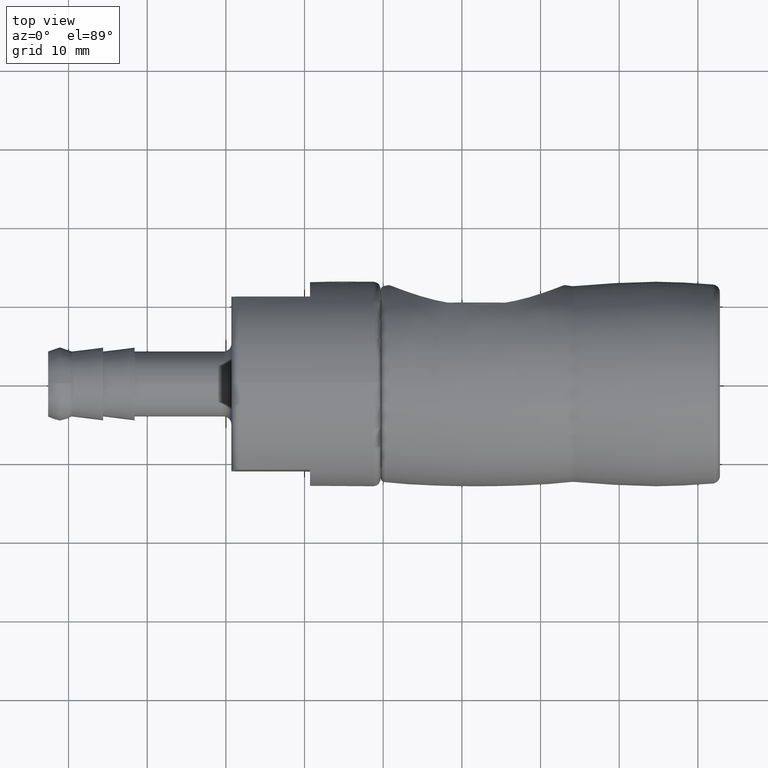
[diagram: clean part render]
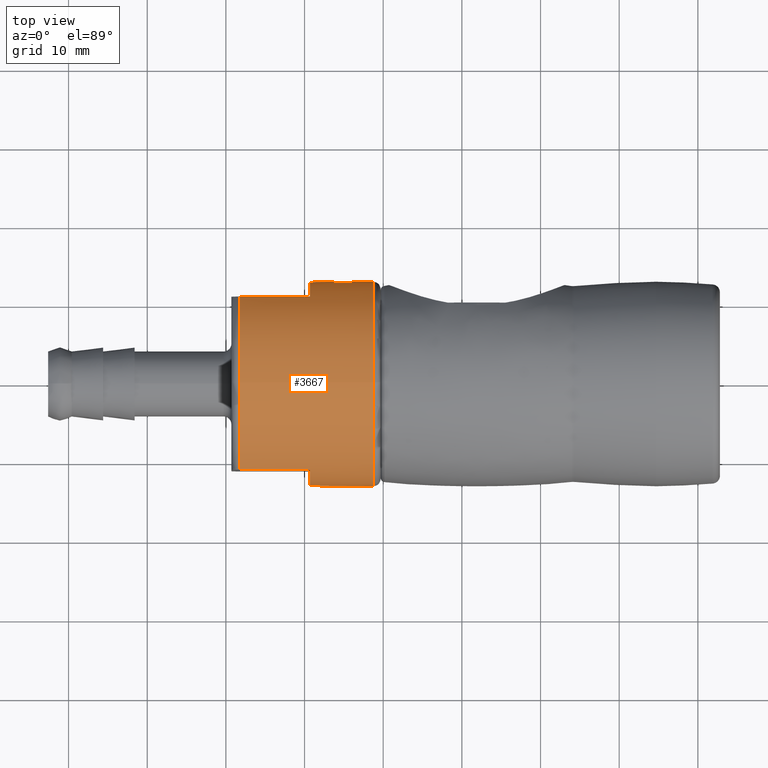
[diagram: same view with one face highlighted and labeled with its STEP entity id]
A machine part, top view. The second image highlights one B-rep face of the part: STEP entity #3667.
In plain terms, the highlighted cylindrical surface (bore or boss wall) has radius 13 mm, axis along (-1, -0, -0).
Its self-contained STEP definition (entity closure, byte-faithful):
#188=FACE_BOUND('',#1161,.T.);
#326=B_SPLINE_CURVE_WITH_KNOTS('',3,(#14279,#14280,#14281,#14282,#14283,
#14284,#14285,#14286,#14287,#14288,#14289,#14290,#14291,#14292,#14293,#14294,
#14295,#14296,#14297,#14298,#14299,#14300,#14301,#14302,#14303,#14304,#14305,
#14306,#14307,#14308,#14309,#14310,#14311,#14312),.UNSPECIFIED.,.T.,.F.,
(4,2,2,2,2,2,2,2,2,2,2,2,2,2,2,2,4),(0.,0.0660066592636782,0.132013318527356,
0.198019234345323,0.26402515016329,0.330031065981257,0.396036981799224,
0.462043641062902,0.52805030032658,0.594056959590258,0.660063618853936,
0.726069534671903,0.79207545048987,0.858081366307837,0.924087282125804,
0.990093941389482,1.05610060065316),.UNSPECIFIED.);
#462=LINE('',#14457,#601);
#463=LINE('',#14461,#602);
#464=LINE('',#14465,#603);
#465=LINE('',#14472,#604);
#466=LINE('',#14475,#605);
#601=VECTOR('',#5171,1000.);
#602=VECTOR('',#5174,1000.);
#603=VECTOR('',#5177,12.9999999999996);
#604=VECTOR('',#5184,1000.);
#605=VECTOR('',#5187,1000.);
#680=CYLINDRICAL_SURFACE('',#4159,12.9999999999996);
#917=FACE_OUTER_BOUND('',#1160,.T.);
#1160=EDGE_LOOP('',(#3317,#3318,#3319,#3320,#3321,#3322,#3323,#3324,#3325,
#3326,#3327,#3328,#3329));
#1161=EDGE_LOOP('',(#3330));
#1414=CIRCLE('',#4157,12.9999999999997);
#1416=CIRCLE('',#4160,12.9999999999996);
#1417=CIRCLE('',#4161,12.9999999999997);
#1418=CIRCLE('',#4162,12.9999999999996);
#1419=CIRCLE('',#4163,12.9999999999996);
#1420=CIRCLE('',#4164,12.9999999999997);
#1421=CIRCLE('',#4165,12.9999999999996);
#1809=VERTEX_POINT('',#14278);
#1819=VERTEX_POINT('',#14425);
#1820=VERTEX_POINT('',#14426);
#1823=VERTEX_POINT('',#14456);
#1824=VERTEX_POINT('',#14458);
#1825=VERTEX_POINT('',#14460);
#1826=VERTEX_POINT('',#14462);
#1827=VERTEX_POINT('',#14464);
#1828=VERTEX_POINT('',#14466);
#1829=VERTEX_POINT('',#14469);
#1830=VERTEX_POINT('',#14471);
#1831=VERTEX_POINT('',#14473);
#2317=EDGE_CURVE('',#1809,#1809,#326,.T.);
#2328=EDGE_CURVE('',#1819,#1820,#1414,.T.);
#2332=EDGE_CURVE('',#1819,#1823,#462,.T.);
#2333=EDGE_CURVE('',#1823,#1824,#1416,.T.);
#2334=EDGE_CURVE('',#1824,#1825,#463,.T.);
#2335=EDGE_CURVE('',#1826,#1825,#1417,.T.);
#2336=EDGE_CURVE('',#1826,#1827,#464,.T.);
#2337=EDGE_CURVE('',#1827,#1828,#1418,.T.);
#2338=EDGE_CURVE('',#1828,#1827,#1419,.T.);
#2339=EDGE_CURVE('',#1829,#1826,#1420,.T.);
#2340=EDGE_CURVE('',#1829,#1830,#465,.T.);
#2341=EDGE_CURVE('',#1830,#1831,#1421,.T.);
#2342=EDGE_CURVE('',#1831,#1820,#466,.T.);
#3317=ORIENTED_EDGE('',*,*,#2328,.F.);
#3318=ORIENTED_EDGE('',*,*,#2332,.T.);
#3319=ORIENTED_EDGE('',*,*,#2333,.T.);
#3320=ORIENTED_EDGE('',*,*,#2334,.T.);
#3321=ORIENTED_EDGE('',*,*,#2335,.F.);
#3322=ORIENTED_EDGE('',*,*,#2336,.T.);
#3323=ORIENTED_EDGE('',*,*,#2337,.T.);
#3324=ORIENTED_EDGE('',*,*,#2338,.T.);
#3325=ORIENTED_EDGE('',*,*,#2336,.F.);
#3326=ORIENTED_EDGE('',*,*,#2339,.F.);
#3327=ORIENTED_EDGE('',*,*,#2340,.T.);
#3328=ORIENTED_EDGE('',*,*,#2341,.T.);
#3329=ORIENTED_EDGE('',*,*,#2342,.T.);
#3330=ORIENTED_EDGE('',*,*,#2317,.T.);
#3667=ADVANCED_FACE('',(#917,#188),#680,.T.);
#4157=AXIS2_PLACEMENT_3D('',#14427,#5165,#5166);
#4159=AXIS2_PLACEMENT_3D('',#14455,#5169,#5170);
#4160=AXIS2_PLACEMENT_3D('',#14459,#5172,#5173);
#4161=AXIS2_PLACEMENT_3D('',#14463,#5175,#5176);
#4162=AXIS2_PLACEMENT_3D('',#14467,#5178,#5179);
#4163=AXIS2_PLACEMENT_3D('',#14468,#5180,#5181);
#4164=AXIS2_PLACEMENT_3D('',#14470,#5182,#5183);
#4165=AXIS2_PLACEMENT_3D('',#14474,#5185,#5186);
#5165=DIRECTION('center_axis',(-1.,-2.5879858961019E-18,-3.851206953318E-18));
#5166=DIRECTION('ref_axis',(3.851206953318E-18,-1.11022302462516E-16,-1.));
#5169=DIRECTION('center_axis',(-1.,-2.5879858961019E-18,-3.851206953318E-18));
#5170=DIRECTION('ref_axis',(3.851206953318E-18,-1.11022302462516E-16,-1.));
#5171=DIRECTION('',(1.,2.5879858961019E-18,3.851206953318E-18));
#5172=DIRECTION('center_axis',(1.,2.5879858961019E-18,3.851206953318E-18));
#5173=DIRECTION('ref_axis',(-3.851206953318E-18,1.11022302462516E-16,1.));
#5174=DIRECTION('',(-1.,-2.5879858961019E-18,-3.851206953318E-18));
#5175=DIRECTION('center_axis',(-1.,-2.5879858961019E-18,-3.851206953318E-18));
#5176=DIRECTION('ref_axis',(3.851206953318E-18,-1.11022302462516E-16,-1.));
#5177=DIRECTION('',(1.,2.5879858961019E-18,3.851206953318E-18));
#5178=DIRECTION('center_axis',(-1.,-2.5879858961019E-18,-3.851206953318E-18));
#5179=DIRECTION('ref_axis',(3.851206953318E-18,-1.11022302462516E-16,-1.));
#5180=DIRECTION('center_axis',(-1.,-2.5879858961019E-18,-3.851206953318E-18));
#5181=DIRECTION('ref_axis',(3.851206953318E-18,-1.11022302462516E-16,-1.));
#5182=DIRECTION('center_axis',(-1.,-2.5879858961019E-18,-3.851206953318E-18));
#5183=DIRECTION('ref_axis',(3.851206953318E-18,-1.11022302462516E-16,-1.));
#5184=DIRECTION('',(1.,2.5879858961019E-18,3.851206953318E-18));
#5185=DIRECTION('center_axis',(1.,2.5879858961019E-18,3.851206953318E-18));
#5186=DIRECTION('ref_axis',(-3.851206953318E-18,1.11022302462516E-16,1.));
#5187=DIRECTION('',(-1.,-2.5879858961019E-18,-3.851206953318E-18));
#14278=CARTESIAN_POINT('',(4.85000000000804,12.8816730279879,1.75));
#14279=CARTESIAN_POINT('Ctrl Pts',(4.85000000000804,12.8816730279879,1.75));
#14280=CARTESIAN_POINT('Ctrl Pts',(4.62997780246244,12.8816730279879,1.75));
#14281=CARTESIAN_POINT('Ctrl Pts',(4.39547490817945,12.8878920026408,1.70597375149191));
#14282=CARTESIAN_POINT('Ctrl Pts',(3.9643915146893,12.9102854136915,1.52729734685453));
#14283=CARTESIAN_POINT('Ctrl Pts',(3.76778790114755,12.9261289104016,1.39266163529243));
#14284=CARTESIAN_POINT('Ctrl Pts',(3.45734011304205,12.9558144352243,1.08221384718694));
#14285=CARTESIAN_POINT('Ctrl Pts',(3.32270303079766,12.9715950597041,0.88560947579243));
#14286=CARTESIAN_POINT('Ctrl Pts',(3.14402562458904,12.9938443470913,0.454523507160608));
#14287=CARTESIAN_POINT('Ctrl Pts',(3.10000000000803,12.9999999999996,0.220019719393222));
#14288=CARTESIAN_POINT('Ctrl Pts',(3.10000000000803,12.9999999999996,-0.220019719393224));
#14289=CARTESIAN_POINT('Ctrl Pts',(3.14402562458904,12.9938443470913,-0.454523507160611));
#14290=CARTESIAN_POINT('Ctrl Pts',(3.32270303079766,12.9715950597041,-0.885609475792433));
#14291=CARTESIAN_POINT('Ctrl Pts',(3.45734011304205,12.9558144352243,-1.08221384718694));
#14292=CARTESIAN_POINT('Ctrl Pts',(3.76778790114755,12.9261289104016,-1.39266163529244));
#14293=CARTESIAN_POINT('Ctrl Pts',(3.9643915146893,12.9102854136915,-1.52729734685453));
#14294=CARTESIAN_POINT('Ctrl Pts',(4.39547490817945,12.8878920026408,-1.70597375149191));
#14295=CARTESIAN_POINT('Ctrl Pts',(4.62997780246244,12.8816730279879,-1.75000000000001));
#14296=CARTESIAN_POINT('Ctrl Pts',(5.07002219755363,12.8816730279879,-1.75000000000001));
#14297=CARTESIAN_POINT('Ctrl Pts',(5.30452509183662,12.8878920026408,-1.70597375149191));
#14298=CARTESIAN_POINT('Ctrl Pts',(5.73560848532677,12.9102854136915,-1.52729734685453));
#14299=CARTESIAN_POINT('Ctrl Pts',(5.93221209886852,12.9261289104016,-1.39266163529244));
#14300=CARTESIAN_POINT('Ctrl Pts',(6.24265988697402,12.9558144352243,-1.08221384718694));
#14301=CARTESIAN_POINT('Ctrl Pts',(6.37729696921841,12.9715950597041,-0.885609475792433));
#14302=CARTESIAN_POINT('Ctrl Pts',(6.55597437542704,12.9938443470913,-0.454523507160612));
#14303=CARTESIAN_POINT('Ctrl Pts',(6.60000000000804,12.9999999999996,-0.220019719393225));
#14304=CARTESIAN_POINT('Ctrl Pts',(6.60000000000804,12.9999999999996,0.220019719393221));
#14305=CARTESIAN_POINT('Ctrl Pts',(6.55597437542704,12.9938443470913,0.454523507160607));
#14306=CARTESIAN_POINT('Ctrl Pts',(6.37729696921841,12.9715950597041,0.885609475792428));
#14307=CARTESIAN_POINT('Ctrl Pts',(6.24265988697402,12.9558144352243,1.08221384718693));
#14308=CARTESIAN_POINT('Ctrl Pts',(5.93221209886852,12.9261289104016,1.39266163529243));
#14309=CARTESIAN_POINT('Ctrl Pts',(5.73560848532677,12.9102854136915,1.52729734685453));
#14310=CARTESIAN_POINT('Ctrl Pts',(5.30452509183662,12.8878920026408,1.70597375149191));
#14311=CARTESIAN_POINT('Ctrl Pts',(5.07002219755363,12.8816730279879,1.75));
#14312=CARTESIAN_POINT('Ctrl Pts',(4.85000000000804,12.8816730279879,1.75));
#14425=CARTESIAN_POINT('',(-8.29999999999338,11.,-6.92820323027491));
#14426=CARTESIAN_POINT('',(-8.29999999999302,-11.,-6.92820323027491));
#14427=CARTESIAN_POINT('Origin',(-8.2999999999932,-4.65837461298375E-17,
-2.21210613715508E-16));
#14455=CARTESIAN_POINT('Origin',(-32.599999999992,-1.09471803405111E-16,
-3.1479494268113E-16));
#14456=CARTESIAN_POINT('',(0.700000000006802,11.,-6.9282032302748));
#14457=CARTESIAN_POINT('',(-32.599999999992,11.,-6.9282032302748));
#14458=CARTESIAN_POINT('',(0.700000000006802,11.,6.9282032302748));
#14459=CARTESIAN_POINT('Origin',(0.700000000006802,-2.32918730649203E-17,
-1.86549751135646E-16));
#14460=CARTESIAN_POINT('',(-8.29999999999302,11.,6.92820323027491));
#14461=CARTESIAN_POINT('',(-32.599999999992,11.,6.9282032302748));
#14462=CARTESIAN_POINT('',(-8.29999999999338,2.98874702477434E-15,12.9999999999996));
#14463=CARTESIAN_POINT('Origin',(-8.2999999999932,-4.65837461298375E-17,
-2.21210613715508E-16));
#14464=CARTESIAN_POINT('',(8.70000000000759,3.03274278500807E-15,12.9999999999996));
#14465=CARTESIAN_POINT('',(-32.599999999992,2.92585896749906E-15,12.9999999999996));
#14466=CARTESIAN_POINT('',(8.70000000000759,-1.44587791790876E-15,-12.9999999999996));
#14467=CARTESIAN_POINT('Origin',(8.70000000000759,-2.58798589610307E-18,
-1.55740095509099E-16));
#14468=CARTESIAN_POINT('Origin',(8.70000000000759,-2.58798589610307E-18,
-1.55740095509099E-16));
#14469=CARTESIAN_POINT('',(-8.29999999999338,-11.,6.92820323027491));
#14470=CARTESIAN_POINT('Origin',(-8.2999999999932,-4.65837461298375E-17,
-2.21210613715508E-16));
#14471=CARTESIAN_POINT('',(0.700000000006802,-11.,6.9282032302748));
#14472=CARTESIAN_POINT('',(-32.599999999992,-11.,6.9282032302748));
#14473=CARTESIAN_POINT('',(0.700000000006802,-11.,-6.9282032302748));
#14474=CARTESIAN_POINT('Origin',(0.700000000006802,-2.32918730649203E-17,
-1.86549751135646E-16));
#14475=CARTESIAN_POINT('',(-32.599999999992,-11.,-6.9282032302748));